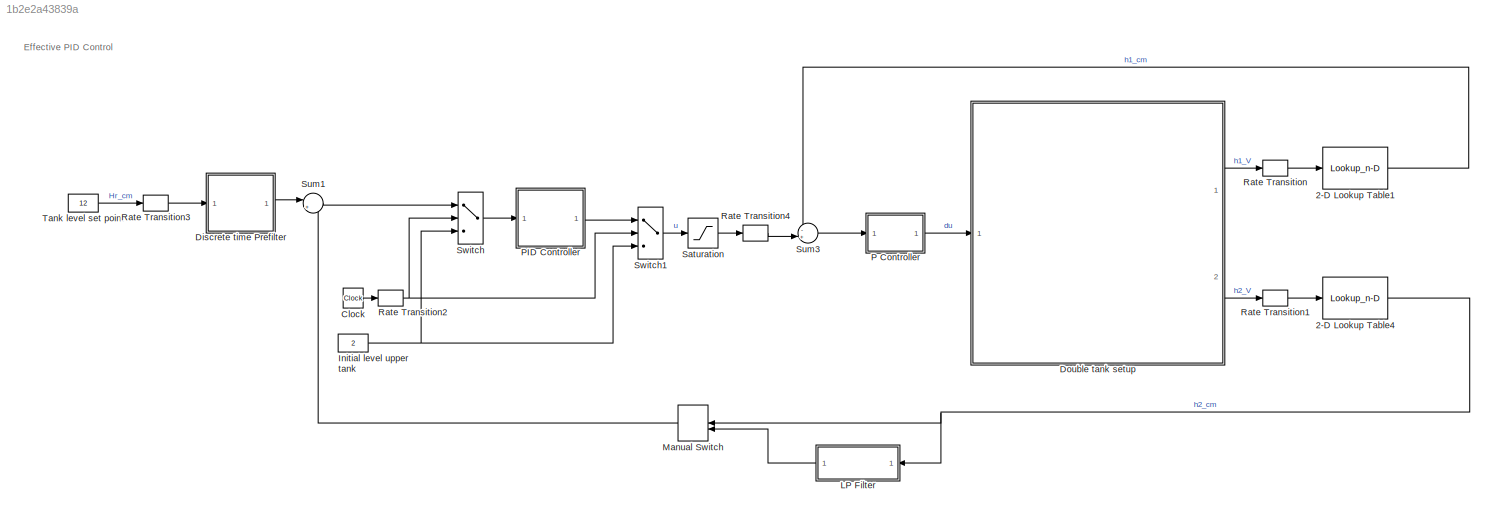
MODEL slx_1b2e2a43839a
KIND model
CONFIG AbsTol = auto
CONFIG EnableMultiTasking = on
CONFIG FixedStep = auto
CONFIG MaxStep = auto
CONFIG MinStep = auto
CONFIG RelTol = 1e-3
CONFIG SampleTimeConstraint = Unconstrained
CONFIG Solver = ode5
CONFIG SolverName = ode5
CONFIG StartTime = 0.0
CONFIG StopTime = inf
BLOCK [Lookup_n-D] 2-D Lookup Table1
  BreakpointsForDimension1 = x
  BreakpointsForDimension2 = [1:3]
  NumberOfTableDimensions = 1
  Ports = [1, 1]
  RndMeth = Simplest
  Table = y
BLOCK [Lookup_n-D] 2-D Lookup Table4
  BreakpointsForDimension1 = x
  BreakpointsForDimension2 = [1:3]
  NumberOfTableDimensions = 1
  Ports = [1, 1]
  RndMeth = Simplest
  Table = y
BLOCK [Clock] Clock
  Decimation = 1
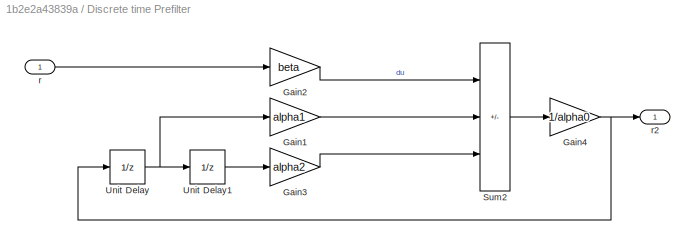
BLOCK [SubSystem] Discrete time Prefilter
  Ports = [1, 1]
  RequestExecContextInheritance = off
BLOCK [Gain] Discrete time Prefilter/Gain1
  Gain = alpha1
BLOCK [Gain] Discrete time Prefilter/Gain2
  Gain = beta
BLOCK [Gain] Discrete time Prefilter/Gain3
  Gain = alpha2
BLOCK [Gain] Discrete time Prefilter/Gain4
  Gain = 1/alpha0
BLOCK [Sum] Discrete time Prefilter/Sum2
  IconShape = rectangular
  Inputs = +--
  Ports = [3, 1]
BLOCK [UnitDelay] Discrete time Prefilter/Unit Delay
  HasFrameUpgradeWarning = on
  SampleTime = Ts
BLOCK [UnitDelay] Discrete time Prefilter/Unit Delay1
  HasFrameUpgradeWarning = on
  SampleTime = Ts
BLOCK [Inport] Discrete time Prefilter/r
BLOCK [Outport] Discrete time Prefilter/r2
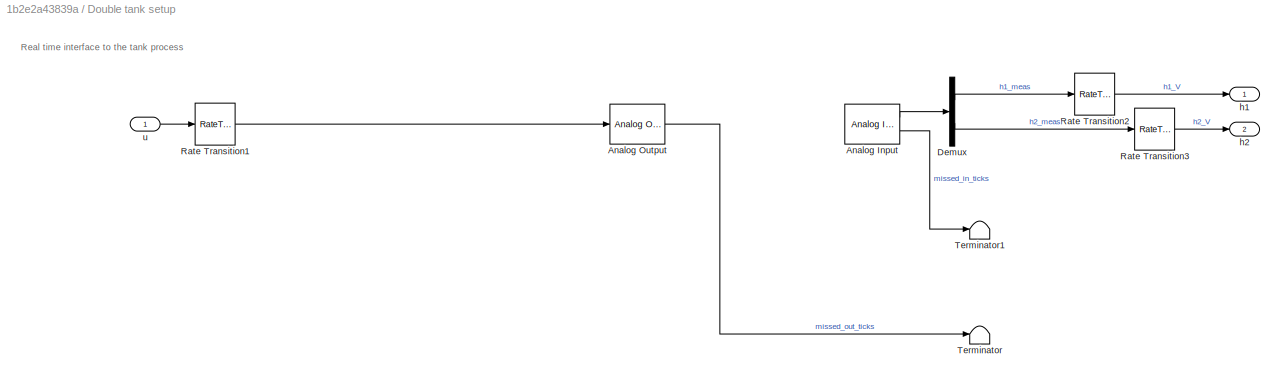
BLOCK [SubSystem] Double tank setup
  AncestorBlock = R0002E_lib/Double tank setup
  Ports = [1, 2]
  RequestExecContextInheritance = off
  StopFcn = chn =get_param(gcb,'u_ch');                          \ns = daq.createSession('ni');                         \nchannel = ['ao',chn];                                \ns.addAnalogOutputChannel('Dev1', channel, 'Voltage');\nx = zeros(5,1);                                      \ns.queueOutputData(x);                                \nlh = s.addlistener('DataRequired', ...               \n@(src,event) src.queue...<+472ch>
BLOCK [Reference] Double tank setup/Analog Input  REF=sldrtlib/Analog Input
  AttributesFormatString = National Instruments\nPCI-6024E [auto]
  Ports = [0, 2]
  SourceBlock = sldrtlib/Analog Input
  SourceProductBaseCode = WT
  SourceType = Simulink Desktop Real-Time Analog Input
BLOCK [Reference] Double tank setup/Analog Output  REF=sldrtlib/Analog Output
  AttributesFormatString = National Instruments\nPCI-6024E [auto]
  Ports = [1, 1]
  SourceBlock = sldrtlib/Analog Output
  SourceProductBaseCode = WT
  SourceType = Simulink Desktop Real-Time Analog Output
BLOCK [Demux] Double tank setup/Demux
  Outputs = 2
  Ports = [1, 2]
BLOCK [RateTransition] Double tank setup/Rate Transition1
  OutPortSampleTime = ts
BLOCK [RateTransition] Double tank setup/Rate Transition2
BLOCK [RateTransition] Double tank setup/Rate Transition3
BLOCK [Terminator] Double tank setup/Terminator
BLOCK [Terminator] Double tank setup/Terminator1
BLOCK [Outport] Double tank setup/h1
BLOCK [Outport] Double tank setup/h2
  Port = 2
BLOCK [Inport] Double tank setup/u
BLOCK [Constant] Initial level upper tank
  SampleTime = 0.5
  Value = 2
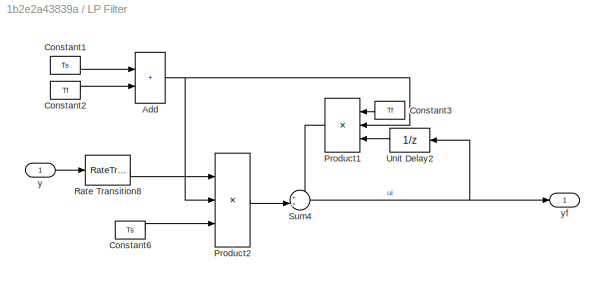
BLOCK [SubSystem] LP Filter
  Ports = [1, 1]
  RequestExecContextInheritance = off
BLOCK [Sum] LP Filter/Add
  IconShape = rectangular
  Ports = [2, 1]
BLOCK [Constant] LP Filter/Constant1
  Value = Ts
BLOCK [Constant] LP Filter/Constant2
  Value = Tf
BLOCK [Constant] LP Filter/Constant3
  Value = Tf
BLOCK [Constant] LP Filter/Constant6
  Value = Ts
BLOCK [Product] LP Filter/Product1
  Inputs = */*
  Ports = [3, 1]
  RndMeth = Zero
BLOCK [Product] LP Filter/Product2
  Inputs = */*
  Ports = [3, 1]
  RndMeth = Zero
BLOCK [RateTransition] LP Filter/Rate Transition8
  OutPortSampleTime = Ts
BLOCK [Sum] LP Filter/Sum4
  Inputs = ++|
  Ports = [2, 1]
BLOCK [UnitDelay] LP Filter/Unit Delay2
  HasFrameUpgradeWarning = on
  SampleTime = -1
BLOCK [Inport] LP Filter/y
BLOCK [Outport] LP Filter/yf
BLOCK [ManualSwitch] Manual Switch
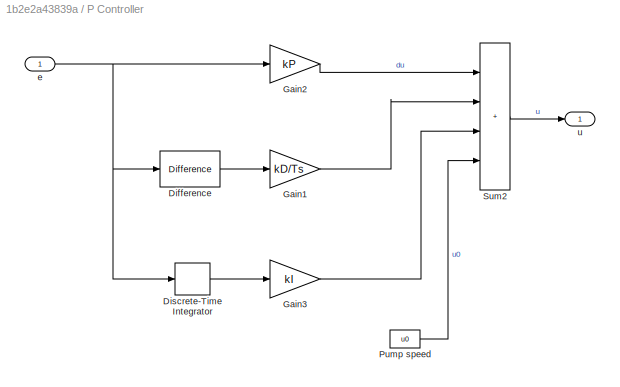
BLOCK [SubSystem] P Controller
  Ports = [1, 1]
  RequestExecContextInheritance = off
BLOCK [Reference] P Controller/Difference  REF=simulink/Discrete/Difference
  Ports = [1, 1]
  SourceBlock = simulink/Discrete/Difference
  SourceProductBaseCode = SL
  SourceType = Difference
BLOCK [DiscreteIntegrator] P Controller/Discrete-Time Integrator
  ICPrevOutput = DiscIntNeverNeededParam
  ICPrevScaledInput = DiscIntNeverNeededParam
  Ports = [1, 1]
  SampleTime = Ts
BLOCK [Gain] P Controller/Gain1
  Gain = kD/Ts
BLOCK [Gain] P Controller/Gain2
  Gain = kP
BLOCK [Gain] P Controller/Gain3
  Gain = kI
BLOCK [Constant] P Controller/Pump speed
  SampleTime = Ts
  Value = u0
BLOCK [Sum] P Controller/Sum2
  IconShape = rectangular
  Inputs = ++++
  Ports = [4, 1]
BLOCK [Inport] P Controller/e
BLOCK [Outport] P Controller/u
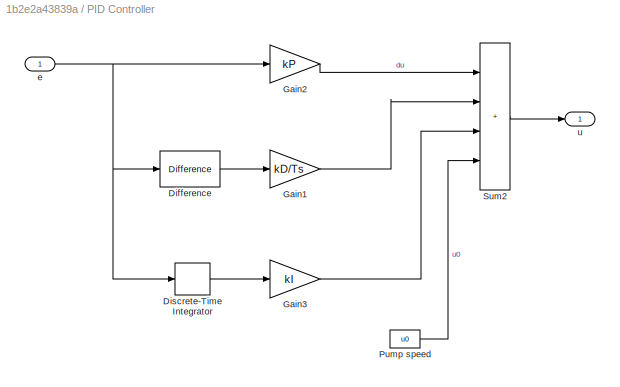
BLOCK [SubSystem] PID Controller
  Ports = [1, 1]
  RequestExecContextInheritance = off
BLOCK [Reference] PID Controller/Difference  REF=simulink/Discrete/Difference
  Ports = [1, 1]
  SourceBlock = simulink/Discrete/Difference
  SourceProductBaseCode = SL
  SourceType = Difference
BLOCK [DiscreteIntegrator] PID Controller/Discrete-Time Integrator
  ICPrevOutput = DiscIntNeverNeededParam
  ICPrevScaledInput = DiscIntNeverNeededParam
  Ports = [1, 1]
  SampleTime = Ts
BLOCK [Gain] PID Controller/Gain1
  Gain = kD/Ts
BLOCK [Gain] PID Controller/Gain2
  Gain = kP
BLOCK [Gain] PID Controller/Gain3
  Gain = kI
BLOCK [Constant] PID Controller/Pump speed
  SampleTime = Ts
  Value = u0
BLOCK [Sum] PID Controller/Sum2
  IconShape = rectangular
  Inputs = ++++
  Ports = [4, 1]
BLOCK [Inport] PID Controller/e
BLOCK [Outport] PID Controller/u
BLOCK [RateTransition] Rate Transition
  OutPortSampleTime = 0.1
BLOCK [RateTransition] Rate Transition1
  OutPortSampleTime = 0.5
BLOCK [RateTransition] Rate Transition2
  OutPortSampleTime = 0.5
BLOCK [RateTransition] Rate Transition3
  OutPortSampleTime = 0.5
BLOCK [RateTransition] Rate Transition4
  OutPortSampleTime = 0.1
BLOCK [Saturate] Saturation
  LowerLimit = 0
  UpperLimit = 15
BLOCK [Sum] Sum1
  Inputs = |+-
  Ports = [2, 1]
BLOCK [Sum] Sum3
  Inputs = -+|
  Ports = [2, 1]
BLOCK [Switch] Switch
  InputSameDT = off
  SaturateOnIntegerOverflow = off
  Threshold = 80
BLOCK [Switch] Switch1
  InputSameDT = off
  SaturateOnIntegerOverflow = off
  Threshold = 80
BLOCK [Constant] Tank level set point
  SampleTime = 0.5
  Value = 12
ANNOTATION (root): Low pass filtering of the measurement signal can be activated Voltage that is send to the pump
ANNOTATION (root): Effective PID Control
ANNOTATION Double tank setup: Real time interface to the tank process
LINE 2-D Lookup Table1:1 -> Sum3:1
NET 2-D Lookup Table4:1 -> LP Filter:1, Manual Switch:1
LINE Clock:1 -> Rate Transition2:1
LINE Discrete time Prefilter/Gain1:1 -> Discrete time Prefilter/Sum2:2
LINE Discrete time Prefilter/Gain2:1 -> Discrete time Prefilter/Sum2:1
LINE Discrete time Prefilter/Gain3:1 -> Discrete time Prefilter/Sum2:3
NET Discrete time Prefilter/Gain4:1 -> Discrete time Prefilter/Unit Delay:1, Discrete time Prefilter/r2:1
LINE Discrete time Prefilter/Sum2:1 -> Discrete time Prefilter/Gain4:1
LINE Discrete time Prefilter/Unit Delay1:1 -> Discrete time Prefilter/Gain3:1
NET Discrete time Prefilter/Unit Delay:1 -> Discrete time Prefilter/Gain1:1, Discrete time Prefilter/Unit Delay1:1
LINE Discrete time Prefilter/r:1 -> Discrete time Prefilter/Gain2:1
LINE Discrete time Prefilter:1 -> Sum1:1
LINE Double tank setup:1 -> Rate Transition:1
LINE Double tank setup:2 -> Rate Transition1:1
NET Initial level upper tank:1 -> Switch1:3, Switch:3
NET LP Filter/Add:1 -> LP Filter/Product1:2, LP Filter/Product2:2
LINE LP Filter/Constant1:1 -> LP Filter/Add:1
LINE LP Filter/Constant2:1 -> LP Filter/Add:2
LINE LP Filter/Constant3:1 -> LP Filter/Product1:1
LINE LP Filter/Constant6:1 -> LP Filter/Product2:3
LINE LP Filter/Product1:1 -> LP Filter/Sum4:1
LINE LP Filter/Product2:1 -> LP Filter/Sum4:2
LINE LP Filter/Rate Transition8:1 -> LP Filter/Product2:1
NET LP Filter/Sum4:1 -> LP Filter/Unit Delay2:1, LP Filter/yf:1
LINE LP Filter/Unit Delay2:1 -> LP Filter/Product1:3
LINE LP Filter/y:1 -> LP Filter/Rate Transition8:1
LINE LP Filter:1 -> Manual Switch:2
LINE Manual Switch:1 -> Sum1:2
LINE P Controller/Difference:1 -> P Controller/Gain1:1
LINE P Controller/Discrete-Time Integrator:1 -> P Controller/Gain3:1
LINE P Controller/Gain1:1 -> P Controller/Sum2:2
LINE P Controller/Gain2:1 -> P Controller/Sum2:1
LINE P Controller/Gain3:1 -> P Controller/Sum2:3
LINE P Controller/Pump speed:1 -> P Controller/Sum2:4
LINE P Controller/Sum2:1 -> P Controller/u:1
NET P Controller/e:1 -> P Controller/Difference:1, P Controller/Discrete-Time Integrator:1, P Controller/Gain2:1
LINE P Controller:1 -> Double tank setup:1
LINE PID Controller/Difference:1 -> PID Controller/Gain1:1
LINE PID Controller/Discrete-Time Integrator:1 -> PID Controller/Gain3:1
LINE PID Controller/Gain1:1 -> PID Controller/Sum2:2
LINE PID Controller/Gain2:1 -> PID Controller/Sum2:1
LINE PID Controller/Gain3:1 -> PID Controller/Sum2:3
LINE PID Controller/Pump speed:1 -> PID Controller/Sum2:4
LINE PID Controller/Sum2:1 -> PID Controller/u:1
NET PID Controller/e:1 -> PID Controller/Difference:1, PID Controller/Discrete-Time Integrator:1, PID Controller/Gain2:1
LINE PID Controller:1 -> Switch1:1
LINE Rate Transition1:1 -> 2-D Lookup Table4:1
NET Rate Transition2:1 -> Switch1:2, Switch:2
LINE Rate Transition3:1 -> Discrete time Prefilter:1
LINE Rate Transition4:1 -> Sum3:2
LINE Rate Transition:1 -> 2-D Lookup Table1:1
LINE Saturation:1 -> Rate Transition4:1
LINE Sum1:1 -> Switch:1
LINE Sum3:1 -> P Controller:1
LINE Switch1:1 -> Saturation:1
LINE Switch:1 -> PID Controller:1
LINE Tank level set point:1 -> Rate Transition3:1
note: NET lines group one-source signal fan-out (src -> all destinations, sorted); 1:1 wires keep LINE
